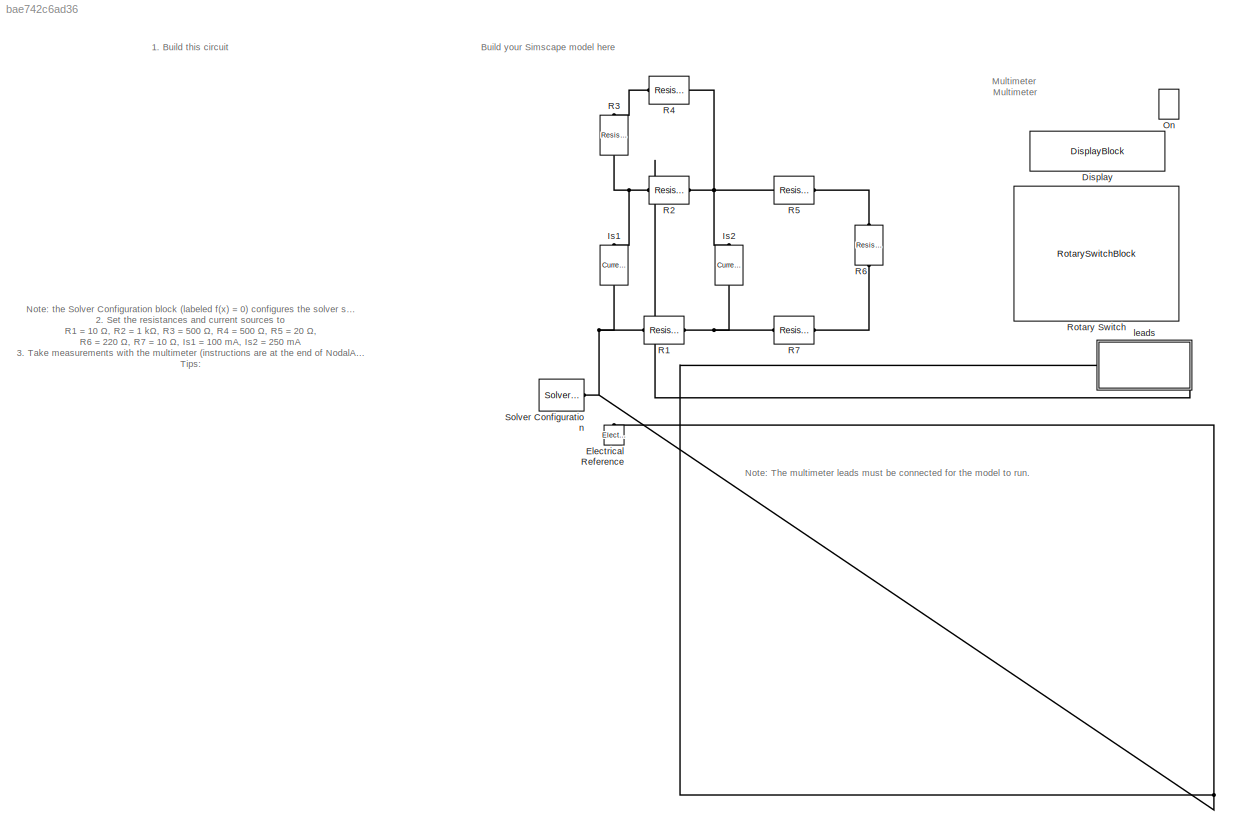
MODEL slx_bae742c6ad36
KIND model
CONFIG AbsTol = auto
CONFIG EnableMultiTasking = off
CONFIG FixedStep = auto
CONFIG MaxStep = auto
CONFIG MinStep = auto
CONFIG RelTol = 1e-6
CONFIG SampleTimeConstraint = Unconstrained
CONFIG SolverName = VariableStepAuto
CONFIG StartTime = 0.0
CONFIG StopTime = inf
BLOCK [DisplayBlock] Display
  Format = Custom
  FormatString = %05.2f
  LabelPosition = Hide
  Transparency = 1
BLOCK [Reference] Electrical Reference  REF=fl_lib/Electrical/Electrical Elements/Electrical Reference
  NameLocation = right
  Ports = [0, 0, 0, 0, 0, 1]
  SourceBlock = fl_lib/Electrical/Electrical Elements/Electrical Reference
  SourceProductBaseCode = SS
  SourceType = Electrical Reference
BLOCK [Reference] Is1  REF=ee_lib/Sources/Current Source
  AttributesFormatString = %<dc_current> %<dc_current_unit>
  NameLocation = right
  Ports = [0, 0, 0, 0, 0, 1, 1]
  SourceBlock = ee_lib/Sources/Current Source
  SourceProductBaseCode = PS
  SourceType = Current Source
BLOCK [Reference] Is2  REF=ee_lib/Sources/Current Source
  AttributesFormatString = %<dc_current> %<dc_current_unit>
  NameLocation = right
  Ports = [0, 0, 0, 0, 0, 1, 1]
  SourceBlock = ee_lib/Sources/Current Source
  SourceProductBaseCode = PS
  SourceType = Current Source
BLOCK [LampBlock] On
  LabelPosition = Hide
BLOCK [Reference] R1  REF=fl_lib/Electrical/Electrical Elements/Resistor
  AttributesFormatString = %<R> %<R_unit>
  Ports = [0, 0, 0, 0, 0, 1, 1]
  SourceBlock = fl_lib/Electrical/Electrical Elements/Resistor
  SourceProductBaseCode = SS
  SourceType = Resistor
BLOCK [Reference] R2  REF=fl_lib/Electrical/Electrical Elements/Resistor
  AttributesFormatString = %<R> %<R_unit>
  Ports = [0, 0, 0, 0, 0, 1, 1]
  SourceBlock = fl_lib/Electrical/Electrical Elements/Resistor
  SourceProductBaseCode = SS
  SourceType = Resistor
BLOCK [Reference] R3  REF=fl_lib/Electrical/Electrical Elements/Resistor
  AttributesFormatString = %<R> %<R_unit>
  NameLocation = left
  Ports = [0, 0, 0, 0, 0, 1, 1]
  SourceBlock = fl_lib/Electrical/Electrical Elements/Resistor
  SourceProductBaseCode = SS
  SourceType = Resistor
BLOCK [Reference] R4  REF=fl_lib/Electrical/Electrical Elements/Resistor
  AttributesFormatString = %<R> %<R_unit>
  Ports = [0, 0, 0, 0, 0, 1, 1]
  SourceBlock = fl_lib/Electrical/Electrical Elements/Resistor
  SourceProductBaseCode = SS
  SourceType = Resistor
BLOCK [Reference] R5  REF=fl_lib/Electrical/Electrical Elements/Resistor
  AttributesFormatString = %<R> %<R_unit>
  Ports = [0, 0, 0, 0, 0, 1, 1]
  SourceBlock = fl_lib/Electrical/Electrical Elements/Resistor
  SourceProductBaseCode = SS
  SourceType = Resistor
BLOCK [Reference] R6  REF=fl_lib/Electrical/Electrical Elements/Resistor
  AttributesFormatString = %<R> %<R_unit>
  NameLocation = left
  Ports = [0, 0, 0, 0, 0, 1, 1]
  SourceBlock = fl_lib/Electrical/Electrical Elements/Resistor
  SourceProductBaseCode = SS
  SourceType = Resistor
BLOCK [Reference] R7  REF=fl_lib/Electrical/Electrical Elements/Resistor
  AttributesFormatString = %<R> %<R_unit>
  Ports = [0, 0, 0, 0, 0, 1, 1]
  SourceBlock = fl_lib/Electrical/Electrical Elements/Resistor
  SourceProductBaseCode = SS
  SourceType = Resistor
BLOCK [RotarySwitchBlock] Rotary Switch
  LabelPosition = Hide
BLOCK [Reference] Solver Configuration  REF=nesl_utility/Solver
Configuration
  NameLocation = top
  Ports = [0, 0, 0, 0, 0, 0, 1]
  SourceBlock = nesl_utility/Solver\nConfiguration
  SourceProductBaseCode = PW,SS
  SourceType = Solver\nConfiguration
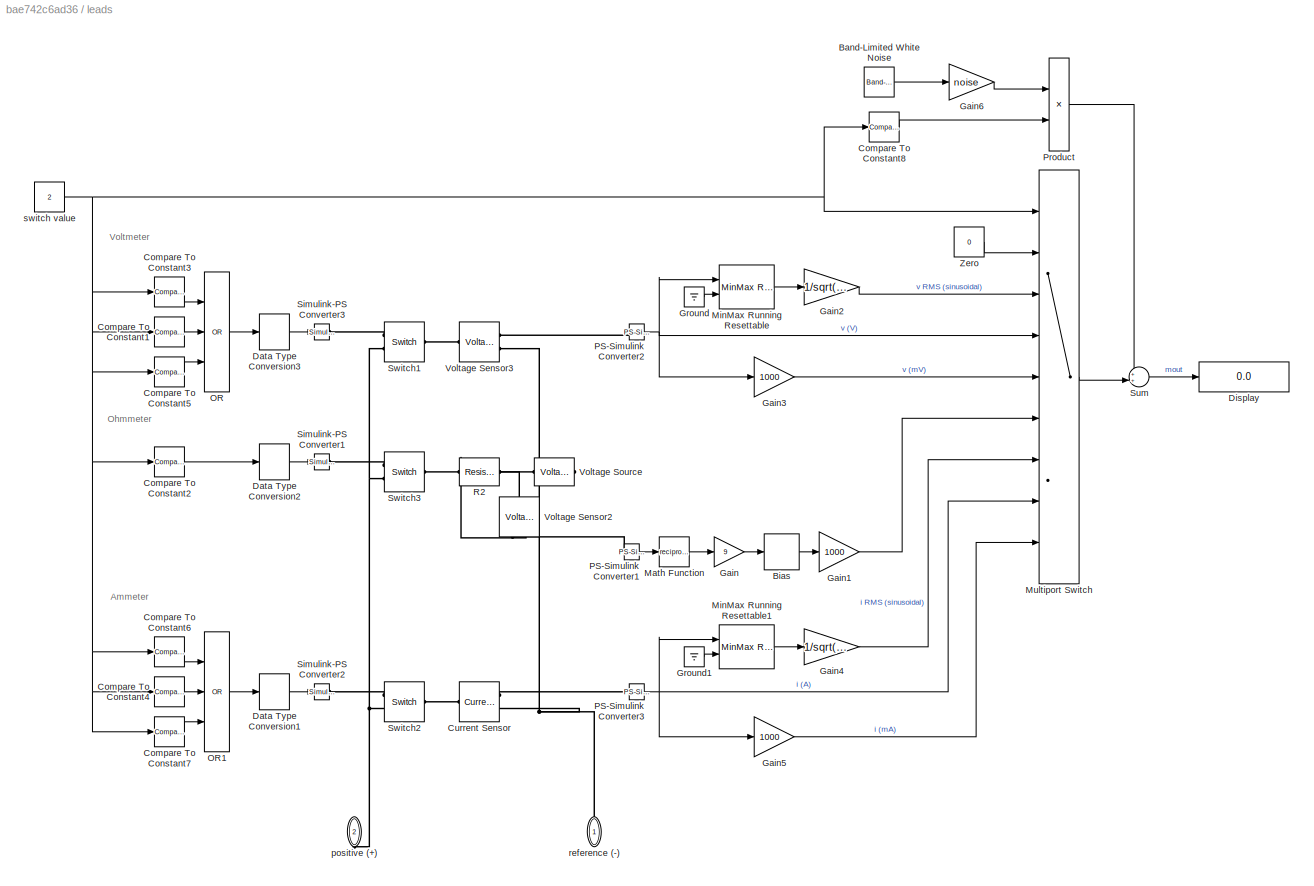
BLOCK [SubSystem] leads
  NameLocation = left
  PortSchema = {"entries":[{"content":{"sides":[{"content":{"connectorIds":[]},"type":"ConnectorPlacement.EquallySpacedRectSide","uuid":"e6ae0c61-2eb5-460e-b2a2-38a9147b4757"},{"content":{"connectorIds":[],"side":"RIGHT"},"type":"ConnectorPlacement.EquallySpacedRectSide","uuid":"ce3a3055-ccd0-4b2b-b818-955585f278b2"},{"content":{"connectorIds":[],"side":"TOP"},"type":"ConnectorPlacement.EquallySpacedRectSide","u...<+390ch>
  Ports = [0, 0, 0, 0, 0, 0, 2]
  RequestExecContextInheritance = off
BLOCK [Reference] leads/Band-Limited White Noise  REF=simulink/Sources/Band-Limited
White Noise
  Ports = [0, 1]
  SourceBlock = simulink/Sources/Band-Limited\nWhite Noise
  SourceProductBaseCode = SL
  SourceType = Band-Limited White Noise.
BLOCK [Bias] leads/Bias
  Bias = -1
  SaturateOnIntegerOverflow = off
BLOCK [Reference] leads/Compare To Constant1  REF=simulink/Logic and Bit
Operations/Compare
To Constant
  Ports = [1, 1]
  SourceBlock = simulink/Logic and Bit\nOperations/Compare\nTo Constant
  SourceProductBaseCode = SL
  SourceType = Compare To Constant
BLOCK [Reference] leads/Compare To Constant2  REF=simulink/Logic and Bit
Operations/Compare
To Constant
  Ports = [1, 1]
  SourceBlock = simulink/Logic and Bit\nOperations/Compare\nTo Constant
  SourceProductBaseCode = SL
  SourceType = Compare To Constant
BLOCK [Reference] leads/Compare To Constant3  REF=simulink/Logic and Bit
Operations/Compare
To Constant
  Ports = [1, 1]
  SourceBlock = simulink/Logic and Bit\nOperations/Compare\nTo Constant
  SourceProductBaseCode = SL
  SourceType = Compare To Constant
BLOCK [Reference] leads/Compare To Constant4  REF=simulink/Logic and Bit
Operations/Compare
To Constant
  Ports = [1, 1]
  SourceBlock = simulink/Logic and Bit\nOperations/Compare\nTo Constant
  SourceProductBaseCode = SL
  SourceType = Compare To Constant
BLOCK [Reference] leads/Compare To Constant5  REF=simulink/Logic and Bit
Operations/Compare
To Constant
  Ports = [1, 1]
  SourceBlock = simulink/Logic and Bit\nOperations/Compare\nTo Constant
  SourceProductBaseCode = SL
  SourceType = Compare To Constant
BLOCK [Reference] leads/Compare To Constant6  REF=simulink/Logic and Bit
Operations/Compare
To Constant
  Ports = [1, 1]
  SourceBlock = simulink/Logic and Bit\nOperations/Compare\nTo Constant
  SourceProductBaseCode = SL
  SourceType = Compare To Constant
BLOCK [Reference] leads/Compare To Constant7  REF=simulink/Logic and Bit
Operations/Compare
To Constant
  Ports = [1, 1]
  SourceBlock = simulink/Logic and Bit\nOperations/Compare\nTo Constant
  SourceProductBaseCode = SL
  SourceType = Compare To Constant
BLOCK [Reference] leads/Compare To Constant8  REF=simulink/Logic and Bit
Operations/Compare
To Constant
  Ports = [1, 1]
  SourceBlock = simulink/Logic and Bit\nOperations/Compare\nTo Constant
  SourceProductBaseCode = SL
  SourceType = Compare To Constant
BLOCK [Reference] leads/Current Sensor  REF=fl_lib/Electrical/Electrical Sensors/Current Sensor
  Ports = [0, 0, 0, 0, 0, 1, 2]
  SourceBlock = fl_lib/Electrical/Electrical Sensors/Current Sensor
  SourceProductBaseCode = SS
  SourceType = Current Sensor
BLOCK [DataTypeConversion] leads/Data Type Conversion1
  OutDataTypeStr = double
  RndMeth = Floor
  SaturateOnIntegerOverflow = off
BLOCK [DataTypeConversion] leads/Data Type Conversion2
  OutDataTypeStr = double
  RndMeth = Floor
  SaturateOnIntegerOverflow = off
BLOCK [DataTypeConversion] leads/Data Type Conversion3
  OutDataTypeStr = double
  RndMeth = Floor
  SaturateOnIntegerOverflow = off
BLOCK [Display] leads/Display
  Decimation = 1
  Ports = [1]
BLOCK [Gain] leads/Gain
  Gain = 9
BLOCK [Gain] leads/Gain1
  Gain = 1000
BLOCK [Gain] leads/Gain2
  Gain = 1/sqrt(2)
BLOCK [Gain] leads/Gain3
  Gain = 1000
BLOCK [Gain] leads/Gain4
  Gain = 1/sqrt(2)
BLOCK [Gain] leads/Gain5
  Gain = 1000
BLOCK [Gain] leads/Gain6
  Gain = noise
BLOCK [Ground] leads/Ground
BLOCK [Ground] leads/Ground1
BLOCK [Math] leads/Math Function
  Operator = reciprocal
  Ports = [1, 1]
BLOCK [Reference] leads/MinMax Running Resettable  REF=simulink/Math
Operations/MinMax
Running
Resettable
  Ports = [2, 1]
  SourceBlock = simulink/Math\nOperations/MinMax\nRunning\nResettable
  SourceProductBaseCode = SL
  SourceType = MinMax Running Resettable
BLOCK [Reference] leads/MinMax Running Resettable1  REF=simulink/Math
Operations/MinMax
Running
Resettable
  Ports = [2, 1]
  SourceBlock = simulink/Math\nOperations/MinMax\nRunning\nResettable
  SourceProductBaseCode = SL
  SourceType = MinMax Running Resettable
BLOCK [MultiPortSwitch] leads/Multiport Switch
  DataPortOrder = Zero-based contiguous
  DiagnosticForDefault = None
  InputSameDT = off
  Inputs = 8
  Ports = [9, 1]
  SaturateOnIntegerOverflow = off
  zeroidx = on
BLOCK [Logic] leads/OR
  AllPortsSameDT = off
  Inputs = 3
  Operator = OR
  OutDataTypeStr = boolean
  Ports = [3, 1]
BLOCK [Logic] leads/OR1
  AllPortsSameDT = off
  Inputs = 3
  Operator = OR
  OutDataTypeStr = boolean
  Ports = [3, 1]
BLOCK [Reference] leads/PS-Simulink Converter1  REF=nesl_utility/PS-Simulink
Converter
  Ports = [0, 1, 0, 0, 0, 1]
  SourceBlock = nesl_utility/PS-Simulink\nConverter
  SourceProductBaseCode = PW,SS
  SourceType = PS-Simulink\nConverter
BLOCK [Reference] leads/PS-Simulink Converter2  REF=nesl_utility/PS-Simulink
Converter
  Ports = [0, 1, 0, 0, 0, 1]
  SourceBlock = nesl_utility/PS-Simulink\nConverter
  SourceProductBaseCode = PW,SS
  SourceType = PS-Simulink\nConverter
BLOCK [Reference] leads/PS-Simulink Converter3  REF=nesl_utility/PS-Simulink
Converter
  Ports = [0, 1, 0, 0, 0, 1]
  SourceBlock = nesl_utility/PS-Simulink\nConverter
  SourceProductBaseCode = PW,SS
  SourceType = PS-Simulink\nConverter
BLOCK [Product] leads/Product
  Ports = [2, 1]
BLOCK [Reference] leads/R2  REF=fl_lib/Electrical/Electrical Elements/Resistor
  AttributesFormatString = %<R> %<R_unit>
  NameLocation = top
  Ports = [0, 0, 0, 0, 0, 1, 1]
  SourceBlock = fl_lib/Electrical/Electrical Elements/Resistor
  SourceProductBaseCode = SS
  SourceType = Resistor
BLOCK [Reference] leads/Simulink-PS Converter1  REF=nesl_utility/Simulink-PS
Converter
  Ports = [1, 0, 0, 0, 0, 0, 1]
  SourceBlock = nesl_utility/Simulink-PS\nConverter
  SourceProductBaseCode = PW,SS
  SourceType = Simulink-PS\nConverter
BLOCK [Reference] leads/Simulink-PS Converter2  REF=nesl_utility/Simulink-PS
Converter
  Ports = [1, 0, 0, 0, 0, 0, 1]
  SourceBlock = nesl_utility/Simulink-PS\nConverter
  SourceProductBaseCode = PW,SS
  SourceType = Simulink-PS\nConverter
BLOCK [Reference] leads/Simulink-PS Converter3  REF=nesl_utility/Simulink-PS
Converter
  Ports = [1, 0, 0, 0, 0, 0, 1]
  SourceBlock = nesl_utility/Simulink-PS\nConverter
  SourceProductBaseCode = PW,SS
  SourceType = Simulink-PS\nConverter
BLOCK [Sum] leads/Sum
  Inputs = ++|
  Ports = [2, 1]
BLOCK [Reference] leads/Switch1  REF=fl_lib/Electrical/Electrical Elements/Switch
  Ports = [0, 0, 0, 0, 0, 1, 2]
  SourceBlock = fl_lib/Electrical/Electrical Elements/Switch
  SourceProductBaseCode = SS
  SourceType = Switch
BLOCK [Reference] leads/Switch2  REF=fl_lib/Electrical/Electrical Elements/Switch
  Ports = [0, 0, 0, 0, 0, 1, 2]
  SourceBlock = fl_lib/Electrical/Electrical Elements/Switch
  SourceProductBaseCode = SS
  SourceType = Switch
BLOCK [Reference] leads/Switch3  REF=fl_lib/Electrical/Electrical Elements/Switch
  Ports = [0, 0, 0, 0, 0, 1, 2]
  SourceBlock = fl_lib/Electrical/Electrical Elements/Switch
  SourceProductBaseCode = SS
  SourceType = Switch
BLOCK [Reference] leads/Voltage Sensor2  REF=fl_lib/Electrical/Electrical Sensors/Voltage Sensor
  NameLocation = right
  Ports = [0, 0, 0, 0, 0, 1, 2]
  SourceBlock = fl_lib/Electrical/Electrical Sensors/Voltage Sensor
  SourceProductBaseCode = SS
  SourceType = Voltage Sensor
BLOCK [Reference] leads/Voltage Sensor3  REF=fl_lib/Electrical/Electrical Sensors/Voltage Sensor
  NameLocation = top
  Ports = [0, 0, 0, 0, 0, 1, 2]
  SourceBlock = fl_lib/Electrical/Electrical Sensors/Voltage Sensor
  SourceProductBaseCode = SS
  SourceType = Voltage Sensor
BLOCK [Reference] leads/Voltage Source  REF=ee_lib/Sources/Voltage Source
  NameLocation = top
  Ports = [0, 0, 0, 0, 0, 1, 1]
  SourceBlock = ee_lib/Sources/Voltage Source
  SourceProductBaseCode = PS
  SourceType = Voltage Source
BLOCK [Constant] leads/Zero
  Value = 0
BLOCK [PMIOPort] leads/positive (+)
  NameLocation = right
  Port = 2
  Side = Right
BLOCK [PMIOPort] leads/reference (-)
  NameLocation = left
  Side = Right
BLOCK [Constant] leads/switch value
  Value = 2
ANNOTATION (root): Note: The multimeter leads must be connected for the model to run.
ANNOTATION (root): 1. Build this circuit
ANNOTATION (root): Build your Simscape model here
ANNOTATION (root): Note: the Solver Configuration block (labeled f(x) = 0) configures the solver settings and can be connected anywhere.It must be connected but will not change the electrical network. 2. Set the resistances and current sources to R1 = 10 Ω, R2 = 1 kΩ, R3 = 500 Ω, R4 = 500 Ω, R5 = 20 Ω, R6 = 220 Ω, R7 = 10 Ω, Is1 = 100 mA, Is2 = 250 mA 3. Take measurements with the multimeter (instructions are at the...<+363ch>
ANNOTATION (root): Multimeter
ANNOTATION leads: Ammeter
ANNOTATION leads: Ohmmeter
ANNOTATION leads: Voltmeter
LINE leads/Band-Limited White Noise:1 -> leads/Gain6:1
LINE leads/Bias:1 -> leads/Gain1:1
LINE leads/Compare To Constant1:1 -> leads/OR:2
LINE leads/Compare To Constant2:1 -> leads/Data Type Conversion2:1
LINE leads/Compare To Constant3:1 -> leads/OR:1
LINE leads/Compare To Constant4:1 -> leads/OR1:2
LINE leads/Compare To Constant5:1 -> leads/OR:3
LINE leads/Compare To Constant6:1 -> leads/OR1:1
LINE leads/Compare To Constant7:1 -> leads/OR1:3
LINE leads/Compare To Constant8:1 -> leads/Product:2
LINE leads/Data Type Conversion1:1 -> leads/Simulink-PS Converter2:1
LINE leads/Data Type Conversion2:1 -> leads/Simulink-PS Converter1:1
LINE leads/Data Type Conversion3:1 -> leads/Simulink-PS Converter3:1
LINE leads/Gain1:1 -> leads/Multiport Switch:6
LINE leads/Gain2:1 -> leads/Multiport Switch:3
LINE leads/Gain3:1 -> leads/Multiport Switch:5
LINE leads/Gain4:1 -> leads/Multiport Switch:7
LINE leads/Gain5:1 -> leads/Multiport Switch:9
LINE leads/Gain6:1 -> leads/Product:1
LINE leads/Gain:1 -> leads/Bias:1
LINE leads/Ground1:1 -> leads/MinMax Running Resettable1:2
LINE leads/Ground:1 -> leads/MinMax Running Resettable:2
LINE leads/Math Function:1 -> leads/Gain:1
LINE leads/MinMax Running Resettable1:1 -> leads/Gain4:1
LINE leads/MinMax Running Resettable:1 -> leads/Gain2:1
LINE leads/Multiport Switch:1 -> leads/Sum:2
LINE leads/OR1:1 -> leads/Data Type Conversion1:1
LINE leads/OR:1 -> leads/Data Type Conversion3:1
LINE leads/PS-Simulink Converter1:1 -> leads/Math Function:1
NET leads/PS-Simulink Converter2:1 -> leads/Gain3:1, leads/MinMax Running Resettable:1, leads/Multiport Switch:4
NET leads/PS-Simulink Converter3:1 -> leads/Gain5:1, leads/MinMax Running Resettable1:1, leads/Multiport Switch:8
LINE leads/Product:1 -> leads/Sum:1
LINE leads/Sum:1 -> leads/Display:1
LINE leads/Zero:1 -> leads/Multiport Switch:2
NET leads/switch value:1 -> leads/Compare To Constant1:1, leads/Compare To Constant2:1, leads/Compare To Constant3:1, leads/Compare To Constant4:1, leads/Compare To Constant5:1, leads/Compare To Constant6:1, leads/Compare To Constant7:1, leads/Compare To Constant8:1, leads/Multiport Switch:1
PNET net1: Electrical Reference:LConn1 -- Is1:RConn1 -- R1:LConn1 -- Solver Configuration:RConn1 -- leads:RConn1
PNET net2: Is1:LConn1 -- R2:LConn1 -- R3:LConn1 -- leads:RConn2
PNET net3: Is2:LConn1 -- R2:RConn1 -- R4:RConn1 -- R5:LConn1
PNET net4: Is2:RConn1 -- R1:RConn1 -- R7:LConn1
PLINE R3:RConn1 -- R4:LConn1
PLINE R5:RConn1 -- R6:LConn1
PLINE R6:RConn1 -- R7:RConn1
PLINE leads/Current Sensor:LConn1 -- leads/Switch2:LConn1
PLINE leads/Current Sensor:RConn1 -- leads/PS-Simulink Converter3:LConn1
PNET net5: leads/Current Sensor:RConn2 -- leads/Voltage Sensor3:RConn2 -- leads/Voltage Source:RConn1 -- leads/reference (-):RConn1
PLINE leads/PS-Simulink Converter1:LConn1 -- leads/Voltage Sensor2:RConn1
PLINE leads/PS-Simulink Converter2:LConn1 -- leads/Voltage Sensor3:RConn1
PNET net6: leads/R2:LConn1 -- leads/Voltage Sensor2:LConn1 -- leads/Voltage Source:LConn1
PNET net7: leads/R2:RConn1 -- leads/Switch3:LConn1 -- leads/Voltage Sensor2:RConn2
PLINE leads/Simulink-PS Converter1:RConn1 -- leads/Switch3:RConn1
PLINE leads/Simulink-PS Converter2:RConn1 -- leads/Switch2:RConn1
PLINE leads/Simulink-PS Converter3:RConn1 -- leads/Switch1:RConn1
PLINE leads/Switch1:LConn1 -- leads/Voltage Sensor3:LConn1
PNET net8: leads/Switch1:RConn2 -- leads/Switch2:RConn2 -- leads/Switch3:RConn2 -- leads/positive (+):RConn1
note: NET lines group one-source signal fan-out (src -> all destinations, sorted); 1:1 wires keep LINE; PNET lines group multi-terminal physical nets as a canonical sorted terminal list (undirected conserving connections); 2-terminal nets keep the pairwise PLINE form
